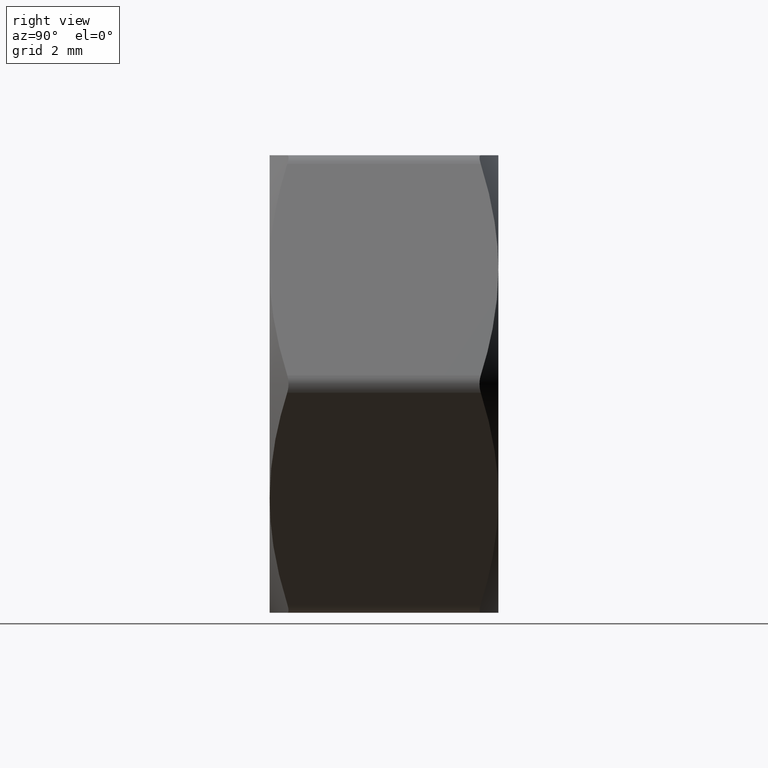
[diagram: clean part render]
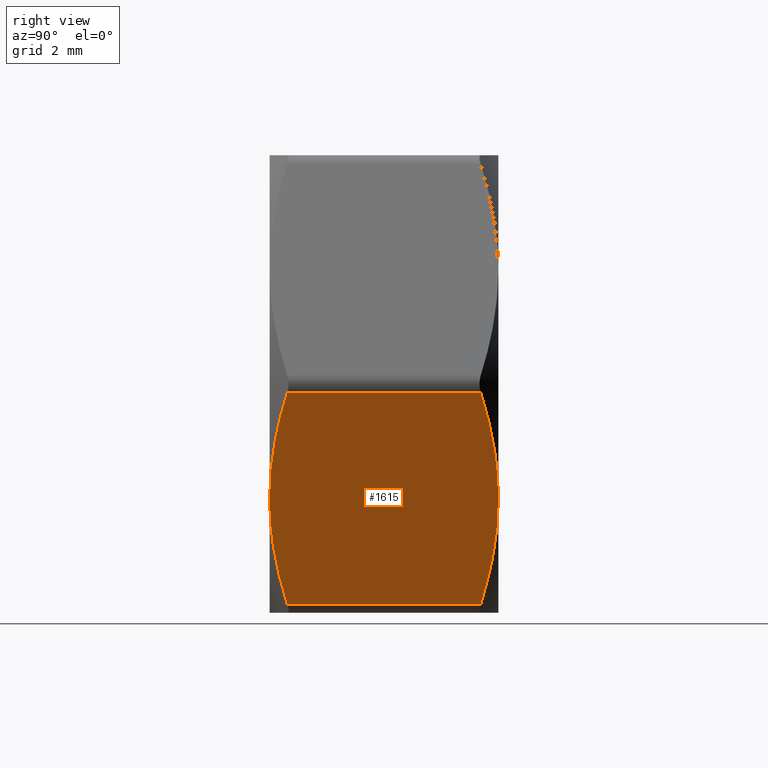
[diagram: same view with one face highlighted and labeled with its STEP entity id]
A machine part, right view. The second image highlights one B-rep face of the part: STEP entity #1615.
In plain terms, the highlighted planar face has unit normal (-0.866, 0, 0.5).
Its self-contained STEP definition (entity closure, byte-faithful):
#51 = CARTESIAN_POINT ( 'NONE',  ( 6.218478719796785900, -3.250000000000003100, -2.229278911526098000 ) ) ;
#119 = CARTESIAN_POINT ( 'NONE',  ( 5.629165124598849900, -3.249999999999999100, -3.250000000000001300 ) ) ;
#163 = VERTEX_POINT ( 'NONE', #265 ) ;
#249 = CARTESIAN_POINT ( 'NONE',  ( 3.897114317028935300, 2.750326475674318900, -6.250000000001794100 ) ) ;
#265 = CARTESIAN_POINT ( 'NONE',  ( 5.629165124598849900, 3.249999999999999100, -3.250000000000001300 ) ) ;
#352 = EDGE_CURVE ( 'NONE', #752, #1315, #1348, .T. ) ;
#480 = CARTESIAN_POINT ( 'NONE',  ( 7.505553499465137600, 3.250000000000000000, 3.903050469030138200E-015 ) ) ;
#486 = CARTESIAN_POINT ( 'NONE',  ( 5.923365020047798500, 3.238358288205309200, -2.740430833500967700 ) ) ;
#515 = CARTESIAN_POINT ( 'NONE',  ( 4.465291406935467200, -3.029614908576547800, -5.265888412587049300 ) ) ;
#521 = ORIENTED_EDGE ( 'NONE', *, *, #624, .T. ) ;
#541 = ORIENTED_EDGE ( 'NONE', *, *, #352, .T. ) ;
#547 = CARTESIAN_POINT ( 'NONE',  ( 5.775913707290532900, 3.250000000000002700, -2.995823998839279400 ) ) ;
#551 = DIRECTION ( 'NONE',  ( -0.0000000000000000000, 1.000000000000000000, -0.0000000000000000000 ) ) ;
#557 = EDGE_LOOP ( 'NONE', ( #657, #900, #541, #1134, #521, #715 ) ) ;
#620 = CARTESIAN_POINT ( 'NONE',  ( 7.361215932167731100, 2.750326475674879800, -0.2499999999999953900 ) ) ;
#624 = EDGE_CURVE ( 'NONE', #780, #1013, #1190, .T. ) ;
#631 = FACE_OUTER_BOUND ( 'NONE', #557, .T. ) ;
#632 = CARTESIAN_POINT ( 'NONE',  ( 5.039851529400913900, 3.250000000000003100, -4.270721088473902000 ) ) ;
#651 = CARTESIAN_POINT ( 'NONE',  ( 5.629165124598849900, -3.249999999999999100, -3.250000000000001300 ) ) ;
#657 = ORIENTED_EDGE ( 'NONE', *, *, #1535, .T. ) ;
#715 = ORIENTED_EDGE ( 'NONE', *, *, #1261, .T. ) ;
#716 = DIRECTION ( 'NONE',  ( -0.8660254037844384900, 0.0000000000000000000, 0.5000000000000004400 ) ) ;
#752 = VERTEX_POINT ( 'NONE', #815 ) ;
#770 = CARTESIAN_POINT ( 'NONE',  ( 7.361215932168766700, -2.750326475674317100, -0.2499999999982020800 ) ) ;
#780 = VERTEX_POINT ( 'NONE', #842 ) ;
#815 = CARTESIAN_POINT ( 'NONE',  ( 7.361215932168766700, -2.750326475674317100, -0.2499999999982020800 ) ) ;
#816 = VECTOR ( 'NONE', #1493, 1000.000000000000000 ) ;
#842 = CARTESIAN_POINT ( 'NONE',  ( 3.897114317029970900, -2.750326475674881500, -6.250000000000000000 ) ) ;
#878 = CARTESIAN_POINT ( 'NONE',  ( 5.334965229149899500, -3.238358288205310600, -3.759569166499033200 ) ) ;
#900 = ORIENTED_EDGE ( 'NONE', *, *, #994, .T. ) ;
#972 = CARTESIAN_POINT ( 'NONE',  ( 7.361215932167731100, 2.750326475674879800, -0.2499999999999953900 ) ) ;
#980 = CARTESIAN_POINT ( 'NONE',  ( 7.361215932167731100, 3.250000000000000000, -0.2499999999999960000 ) ) ;
#988 = VECTOR ( 'NONE', #551, 1000.000000000000000 ) ;
#994 = EDGE_CURVE ( 'NONE', #1213, #752, #1365, .T. ) ;
#1013 = VERTEX_POINT ( 'NONE', #1497 ) ;
#1023 = CARTESIAN_POINT ( 'NONE',  ( 4.464303344479557900, 3.058352876056138900, -5.267599786961737300 ) ) ;
#1026 = CARTESIAN_POINT ( 'NONE',  ( 5.629165124598849900, -3.249999999999999100, -3.250000000000001300 ) ) ;
#1104 = EDGE_CURVE ( 'NONE', #1315, #780, #1372, .T. ) ;
#1116 = CARTESIAN_POINT ( 'NONE',  ( 5.482416541907165100, -3.250000000000003100, -3.504176001160721500 ) ) ;
#1134 = ORIENTED_EDGE ( 'NONE', *, *, #1104, .T. ) ;
#1141 = CARTESIAN_POINT ( 'NONE',  ( 5.043057695669496400, -3.193121803873834300, -4.265167845599206600 ) ) ;
#1146 = CARTESIAN_POINT ( 'NONE',  ( 5.629165124598849900, 3.249999999999999100, -3.250000000000001300 ) ) ;
#1150 = AXIS2_PLACEMENT_3D ( 'NONE', #480, #716, #1359 ) ;
#1176 = CARTESIAN_POINT ( 'NONE',  ( 3.897114317029970000, 3.250000000000000000, -6.250000000000000900 ) ) ;
#1190 = LINE ( 'NONE', #1176, #988 ) ;
#1213 = VERTEX_POINT ( 'NONE', #620 ) ;
#1259 = CARTESIAN_POINT ( 'NONE',  ( 4.180042760147907500, -2.903977949313088800, -5.759953561613368600 ) ) ;
#1261 = EDGE_CURVE ( 'NONE', #1013, #163, #1275, .T. ) ;
#1275 = B_SPLINE_CURVE_WITH_KNOTS ( 'NONE', 3,
 ( #249, #1023, #632, #1146 ),
 .UNSPECIFIED., .F., .F.,
 ( 4, 4 ),
 ( 0.0002974810109325102600, 0.003797433802554440700 ),
 .UNSPECIFIED. ) ;
#1315 = VERTEX_POINT ( 'NONE', #651 ) ;
#1348 = B_SPLINE_CURVE_WITH_KNOTS ( 'NONE', 3,
 ( #770, #1406, #51, #1026 ),
 .UNSPECIFIED., .F., .F.,
 ( 4, 4 ),
 ( 0.0002974810109325099900, 0.003797433802554447600 ),
 .UNSPECIFIED. ) ;
#1359 = DIRECTION ( 'NONE',  ( 0.5000000000000003300, 0.0000000000000000000, 0.8660254037844383700 ) ) ;
#1363 = CARTESIAN_POINT ( 'NONE',  ( 6.215272553528202500, 3.193121803873833400, -2.234832154400793000 ) ) ;
#1365 = LINE ( 'NONE', #980, #816 ) ;
#1372 = B_SPLINE_CURVE_WITH_KNOTS ( 'NONE', 3,
 ( #119, #1116, #878, #1141, #1517, #515, #1259, #1399 ),
 .UNSPECIFIED., .F., .F.,
 ( 4, 2, 2, 4 ),
 ( 0.003797433802554447600, 0.004668978453557816100, 0.005540523104561184700, 0.007283612406567920000 ),
 .UNSPECIFIED. ) ;
#1374 = PLANE ( 'NONE',  #1150 ) ;
#1399 = CARTESIAN_POINT ( 'NONE',  ( 3.897114317029970900, -2.750326475674881500, -6.250000000000000000 ) ) ;
#1406 = CARTESIAN_POINT ( 'NONE',  ( 6.794026904718142700, -3.058352876056137600, -1.232400213038260800 ) ) ;
#1441 = CARTESIAN_POINT ( 'NONE',  ( 5.629165124598849900, 3.249999999999999100, -3.250000000000001300 ) ) ;
#1478 = CARTESIAN_POINT ( 'NONE',  ( 6.793038842262233400, 3.029614908576547400, -1.234111587412948700 ) ) ;
#1493 = DIRECTION ( 'NONE',  ( 0.0000000000000000000, -1.000000000000000000, 0.0000000000000000000 ) ) ;
#1495 = CARTESIAN_POINT ( 'NONE',  ( 6.360320613116883200, 3.159567907072294600, -1.983601545653925500 ) ) ;
#1497 = CARTESIAN_POINT ( 'NONE',  ( 3.897114317028935300, 2.750326475674318900, -6.250000000001794100 ) ) ;
#1517 = CARTESIAN_POINT ( 'NONE',  ( 4.898009636080819200, -3.159567907072296000, -4.516398454346074200 ) ) ;
#1535 = EDGE_CURVE ( 'NONE', #163, #1213, #1603, .T. ) ;
#1603 = B_SPLINE_CURVE_WITH_KNOTS ( 'NONE', 3,
 ( #1441, #547, #486, #1363, #1495, #1478, #1613, #972 ),
 .UNSPECIFIED., .F., .F.,
 ( 4, 2, 2, 4 ),
 ( 0.003797433802554440700, 0.004668978453557810900, 0.005540523104561182100, 0.007283612406567920900 ),
 .UNSPECIFIED. ) ;
#1613 = CARTESIAN_POINT ( 'NONE',  ( 7.078287489049793100, 2.903977949313087900, -0.7400464383866253200 ) ) ;
#1615 = ADVANCED_FACE ( 'NONE', ( #631 ), #1374, .F. ) ;